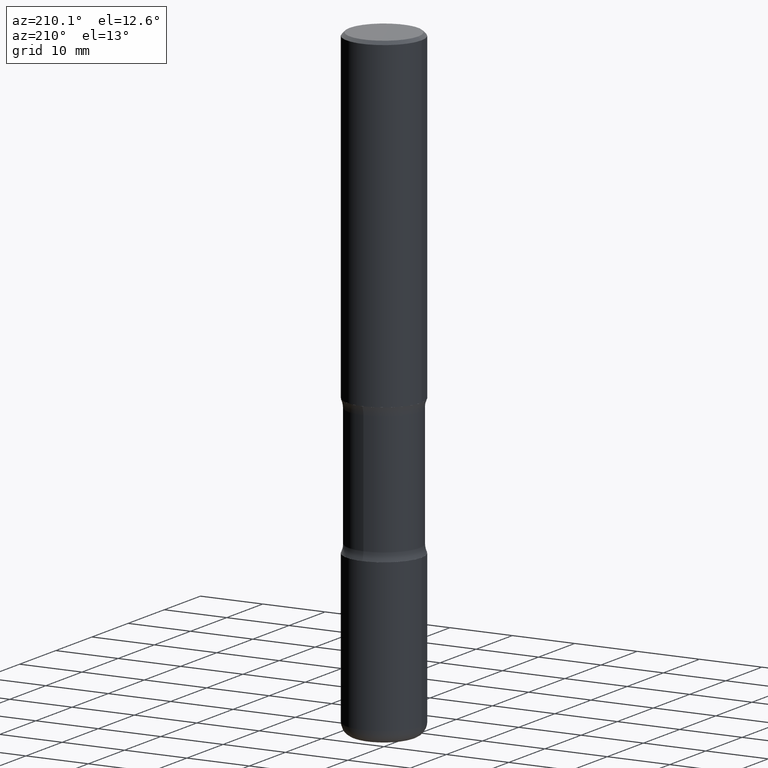
[diagram: clean part render]
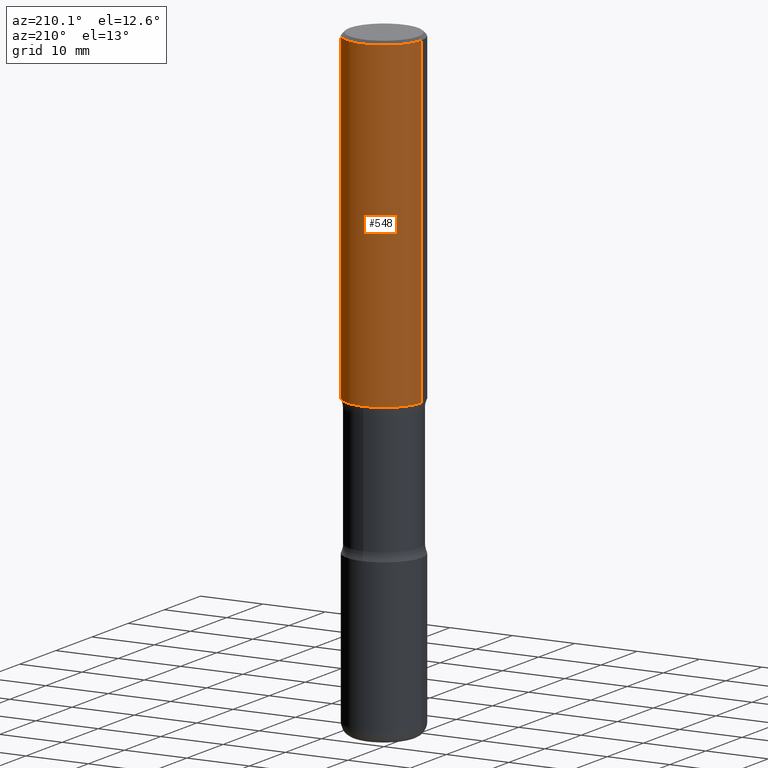
[diagram: same view with one face highlighted and labeled with its STEP entity id]
A machine part, auxiliary view. The second image highlights one B-rep face of the part: STEP entity #548.
In plain terms, the highlighted cylindrical surface (partial cylindrical patch) has radius 5.9995 mm, axis along (-0, 0, 1).
Its self-contained STEP definition (entity closure, byte-faithful):
#48 = CARTESIAN_POINT ( 'NONE',  ( -0.2362000000000001598, -1.930493169962915017E-15, -2.047200000000000131 ) ) ;
#81 = ORIENTED_EDGE ( 'NONE', *, *, #156, .T. ) ;
#87 = CARTESIAN_POINT ( 'NONE',  ( -0.2361999999999999933, 1.678301941865356591E-15, -1.161852468318208757E-29 ) ) ;
#103 = EDGE_CURVE ( 'NONE', #491, #412, #474, .T. ) ;
#116 = ORIENTED_EDGE ( 'NONE', *, *, #451, .F. ) ;
#117 = DIRECTION ( 'NONE',  ( 1.000000000000000000, -6.982962677686267499E-15, 0.000000000000000000 ) ) ;
#118 = CARTESIAN_POINT ( 'NONE',  ( -0.2361999999999998823, 1.579546157692632438E-15, -0.02000000000000006981 ) ) ;
#146 = FACE_OUTER_BOUND ( 'NONE', #530, .T. ) ;
#156 = EDGE_CURVE ( 'NONE', #437, #491, #345, .T. ) ;
#197 = CYLINDRICAL_SURFACE ( 'NONE', #235, 0.2361999999999999933 ) ;
#206 = VECTOR ( 'NONE', #476, 39.37007874015748143 ) ;
#235 = AXIS2_PLACEMENT_3D ( 'NONE', #263, #316, #444 ) ;
#263 = CARTESIAN_POINT ( 'NONE',  ( 0.000000000000000000, 0.000000000000000000, 0.000000000000000000 ) ) ;
#277 = VECTOR ( 'NONE', #363, 39.37007874015748143 ) ;
#302 = DIRECTION ( 'NONE',  ( 1.000000000000000000, -6.982962677686269077E-15, 0.000000000000000000 ) ) ;
#316 = DIRECTION ( 'NONE',  ( -2.445468806185136597E-29, 3.491481338843145583E-15, 1.000000000000000000 ) ) ;
#323 = EDGE_CURVE ( 'NONE', #371, #412, #336, .T. ) ;
#336 = CIRCLE ( 'NONE', #360, 0.2361999999999998823 ) ;
#345 = CIRCLE ( 'NONE', #550, 0.2362000000000001321 ) ;
#354 = CARTESIAN_POINT ( 'NONE',  ( 5.006363740022212241E-29, -7.147760596879688202E-15, -2.047200000000000131 ) ) ;
#360 = AXIS2_PLACEMENT_3D ( 'NONE', #369, #498, #117 ) ;
#363 = DIRECTION ( 'NONE',  ( -2.445468806185136877E-29, 3.491481338843145188E-15, 1.000000000000000000 ) ) ;
#366 = CARTESIAN_POINT ( 'NONE',  ( 0.2361999999999999933, -1.649375784469496131E-15, 1.151752954443000088E-29 ) ) ;
#369 = CARTESIAN_POINT ( 'NONE',  ( 4.890937612370289799E-31, -6.982962677686315028E-17, -0.02000000000000006981 ) ) ;
#371 = VERTEX_POINT ( 'NONE', #392 ) ;
#392 = CARTESIAN_POINT ( 'NONE',  ( 0.2361999999999998823, -1.690279253850498179E-15, -0.02000000000000006981 ) ) ;
#412 = VERTEX_POINT ( 'NONE', #118 ) ;
#419 = CARTESIAN_POINT ( 'NONE',  ( 0.2362000000000001321, -8.797136381349186305E-15, -2.047200000000000131 ) ) ;
#437 = VERTEX_POINT ( 'NONE', #419 ) ;
#444 = DIRECTION ( 'NONE',  ( 1.000000000000000000, -6.982962677686266711E-15, 4.876176775795936353E-29 ) ) ;
#451 = EDGE_CURVE ( 'NONE', #437, #371, #490, .T. ) ;
#474 = LINE ( 'NONE', #87, #206 ) ;
#476 = DIRECTION ( 'NONE',  ( -2.445468806185136877E-29, 3.491481338843145188E-15, 1.000000000000000000 ) ) ;
#484 = DIRECTION ( 'NONE',  ( -2.445468806185136597E-29, 3.491481338843145583E-15, 1.000000000000000000 ) ) ;
#490 = LINE ( 'NONE', #366, #277 ) ;
#491 = VERTEX_POINT ( 'NONE', #48 ) ;
#494 = ORIENTED_EDGE ( 'NONE', *, *, #103, .T. ) ;
#498 = DIRECTION ( 'NONE',  ( -2.445468806185136597E-29, 3.491481338843145583E-15, 1.000000000000000000 ) ) ;
#517 = ORIENTED_EDGE ( 'NONE', *, *, #323, .F. ) ;
#530 = EDGE_LOOP ( 'NONE', ( #81, #494, #517, #116 ) ) ;
#548 = ADVANCED_FACE ( 'NONE', ( #146 ), #197, .T. ) ;
#550 = AXIS2_PLACEMENT_3D ( 'NONE', #354, #484, #302 ) ;